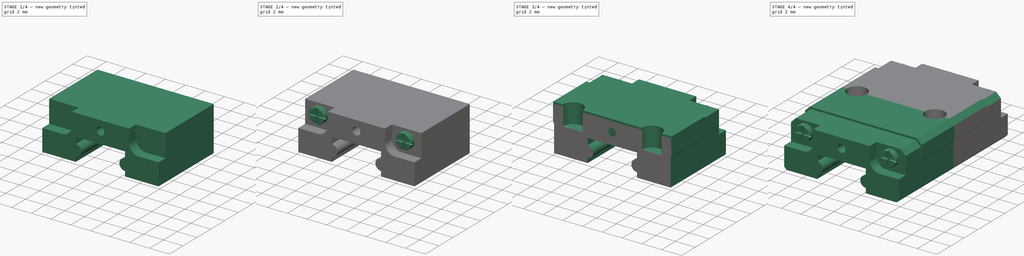
[diagram: build sequence overview — one tinted view per stage of 4, left to right]
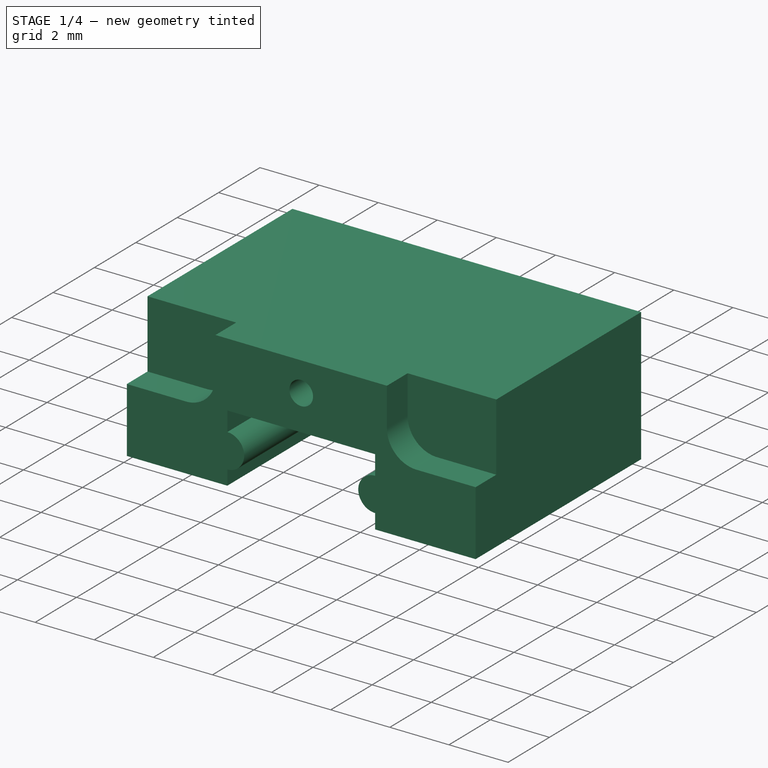
[diagram: stage 1 of 4 — iso view after this stage's code; geometry added in this stage tinted green]
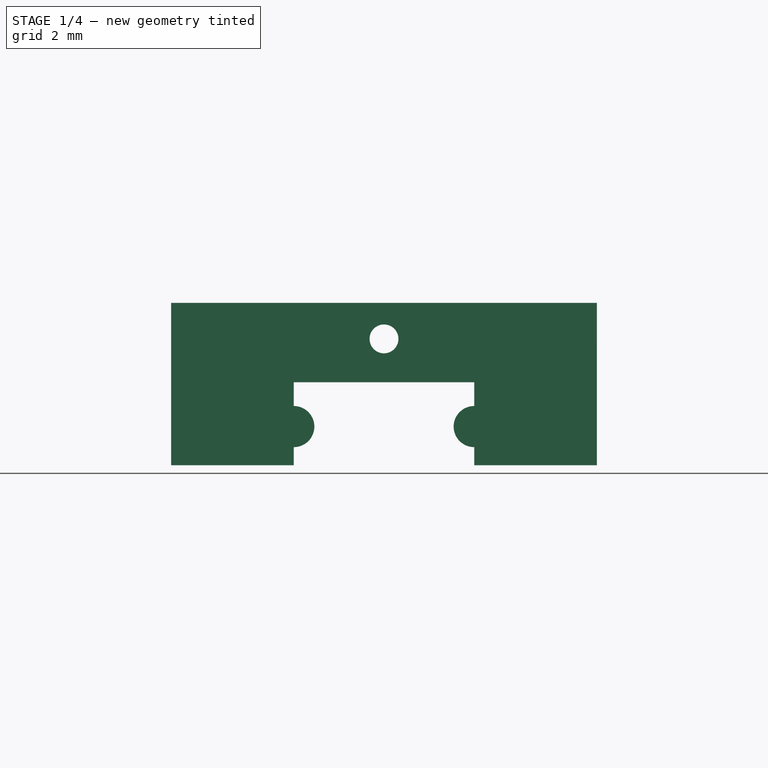
[diagram: stage 1 of 4 — front view after this stage's code; geometry added in this stage tinted green]
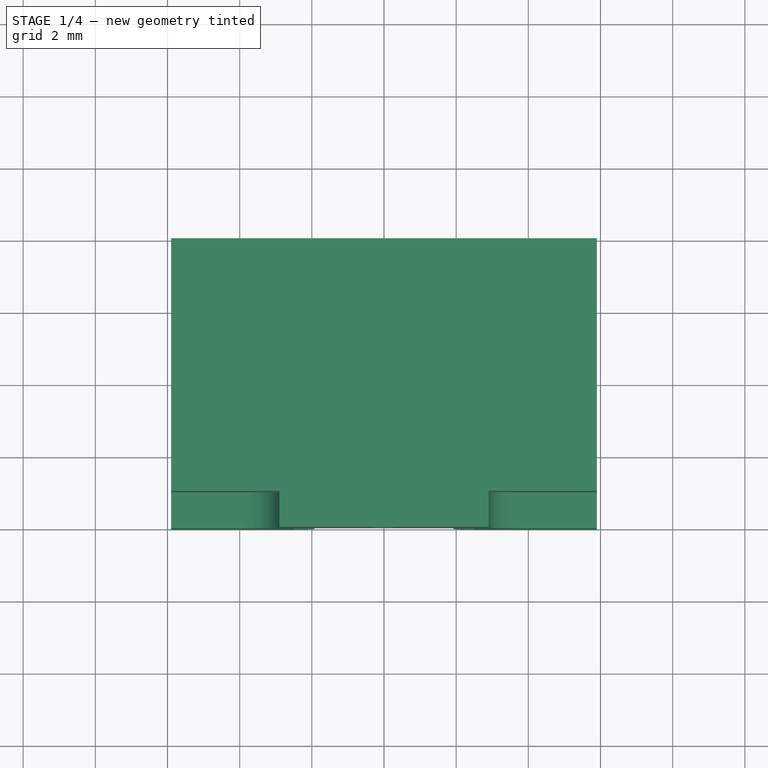
[diagram: stage 1 of 4 — top view after this stage's code; geometry added in this stage tinted green]
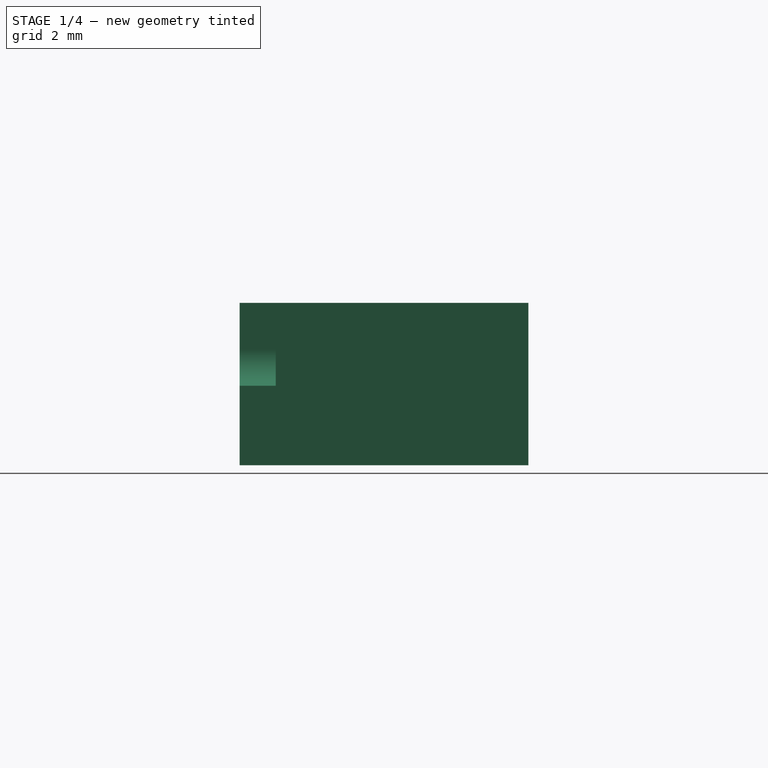
[diagram: stage 1 of 4 — right view after this stage's code; geometry added in this stage tinted green]
FCSTD DOCUMENT  (FreeCAD 0.20R)
Label: LinearSlide-MGN5-Block
License: Creative Commons Attribution-ShareAlike
LicenseURL: http://creativecommons.org/licenses/by-sa/4.0/
objects: Sketcher::SketchObject×7, PartDesign::Pocket×4, PartDesign::Pad×3, Part::Chamfer×2, PartDesign::Fillet×1, PartDesign::Body×1, Part::Mirroring×1, Part::MultiFuse×1
note: 28 computed .brp shape members not serialized (recipe doc carries the construction recipe); baked Part::Feature solids carry a one-line shape summary decoded from their .brp

FEATURE [Sketcher::SketchObject] Sketch  label="Block main section"
  FullyConstrained = true
  MapMode = 5
  Placement = pos=(0,0,0) rot=(1,0,0;1.5708rad)
  Support = -> [XZ_Plane]
  sketch-geometry (12):
    g0: LineSegment StartX=-5.9 StartY=0 StartZ=0 EndX=-2.5 EndY=0 EndZ=0
    g1: LineSegment StartX=-2.5 StartY=0 StartZ=0 EndX=-2.5 EndY=0.5 EndZ=0
    g2: LineSegment StartX=-2.5 StartY=2.3 StartZ=0 EndX=2.5 EndY=2.3 EndZ=0
    g3: LineSegment StartX=2.5 StartY=2.3 StartZ=0 EndX=2.5 EndY=1.64 EndZ=0
    g4: LineSegment StartX=2.5 StartY=0 StartZ=0 EndX=5.9 EndY=0 EndZ=0
    g5: LineSegment StartX=5.9 StartY=0 StartZ=0 EndX=5.9 EndY=4.5 EndZ=0
    g6: LineSegment StartX=5.9 StartY=4.5 StartZ=0 EndX=-5.9 EndY=4.5 EndZ=0
    g7: LineSegment StartX=-5.9 StartY=4.5 StartZ=0 EndX=-5.9 EndY=0 EndZ=0
    g8: ArcOfCircle CenterX=-2.5 CenterY=1.07 CenterZ=0 NormalX=0 NormalY=0 NormalZ=1 AngleXU=0 Radius=0.57 StartAngle=4.71239 EndAngle=7.85398
    g9: ArcOfCircle CenterX=2.5 CenterY=1.07 CenterZ=0 NormalX=0 NormalY=0 NormalZ=1 AngleXU=0 Radius=0.57 StartAngle=1.5708 EndAngle=4.71239
    g10: LineSegment StartX=-2.5 StartY=1.64 StartZ=0 EndX=-2.5 EndY=2.3 EndZ=0
    g11: LineSegment StartX=2.5 StartY=0.5 StartZ=0 EndX=2.5 EndY=0 EndZ=0
  constraints (33):
    c: Horizontal(g0)
    c: Coincident(g0,g1)
    c: Vertical(g1)
    c: Coincident(g11,g4)
    c: Horizontal(g4)
    c: Coincident(g4,g5)
    c: Vertical(g5)
    c: Coincident(g5,g6)
    c: Vertical(g7)
    c: Coincident(g0,g7)
    c: Symmetric(g6,g5,g-2)
    c: Symmetric(g2,g2,g-2)
    c: Symmetric(g10,g3,g-2)
    c: Symmetric(g0,g11,g-2)
    c: Coincident(g7,g6)
    c: DistanceY(g7,g7) = 4.5
    c: DistanceX(g6,g5) = 11.8
    c: PointOnObject(g0,g-1)
    c: DistanceX(g0,g0) = 3.4
    c: Coincident(g2,g3)
    c: DistanceY(g1,g10) = 2.3
    c: Radius(g9) = 0.57
    c: Symmetric(g9,g8,g-2)
    c: PointOnObject(g8,g1)
    c: DistanceY(g9,g2) = 1.23
    c: Coincident(g1,g8)
    c: Coincident(g10,g8)
    c: Coincident(g9,g11)
    c: Coincident(g9,g3)
    c: Symmetric(g9,g1,g-2)
    c: Symmetric(g8,g3,g-2)
    c: DistanceX(g2,g2) = 5
    c: Vertical(g3)
FEATURE [PartDesign::Pad] Pad
  Direction = (0,-1,-2e-16)
  Length = 8
  Length2 = 10
  Placement = pos=(0,0,0) rot=(1,0,0;1.5708rad)
  Profile = -> Sketch
  ReferenceAxis = -> Sketch [N_Axis]
  Type = 0
FEATURE [Sketcher::SketchObject] Sketch001  label="Gap drill"
  ExternalGeometry = -> [Pad]
  FullyConstrained = true
  MapMode = 5
  Placement = pos=(0,-8,-1.8e-15) rot=(1,0,0;1.5708rad)
  Support = -> [Pad]
  sketch-geometry (1):
    g0: Circle CenterX=0 CenterY=3.5 CenterZ=0 NormalX=0 NormalY=0 NormalZ=1 AngleXU=0 Radius=0.4
  constraints (3):
    c: PointOnObject(g0,g-2)
    c: Diameter(g0) = 0.8
    c: DistanceY(g0,g-3) = 1
FEATURE [PartDesign::Pocket] Pocket
  BaseFeature = -> Pad
  Direction = (0,1,2e-16)
  Length = 5
  Length2 = 5
  Placement = pos=(0,0,0) rot=(1,0,0;1.5708rad)
  Profile = -> Sketch001
  ReferenceAxis = -> Sketch001 [N_Axis]
  Type = 1
FEATURE [Sketcher::SketchObject] Sketch002
  ExternalGeometry = -> [Pocket]
  FullyConstrained = true
  MapMode = 5
  Placement = pos=(0,-8,-1.8e-15) rot=(1,0,0;1.5708rad)
  Support = -> [Pocket]
  sketch-geometry (10):
    g0: LineSegment StartX=-2.9 StartY=4.5 StartZ=0 EndX=-5.9 EndY=4.5 EndZ=0
    g1: LineSegment StartX=-5.9 StartY=4.5 StartZ=0 EndX=-5.9 EndY=2.2 EndZ=0
    g2: LineSegment StartX=-5.9 StartY=2.2 StartZ=0 EndX=-3.9 EndY=2.2 EndZ=0
    g3: LineSegment StartX=-2.9 StartY=3.2 StartZ=0 EndX=-2.9 EndY=4.5 EndZ=0
    g4: LineSegment StartX=5.9 StartY=2.2 StartZ=0 EndX=3.9 EndY=2.2 EndZ=0
    g5: LineSegment StartX=2.9 StartY=3.2 StartZ=0 EndX=2.9 EndY=4.5 EndZ=0
    g6: LineSegment StartX=2.9 StartY=4.5 StartZ=0 EndX=5.9 EndY=4.5 EndZ=0
    g7: LineSegment StartX=5.9 StartY=4.5 StartZ=0 EndX=5.9 EndY=2.2 EndZ=0
    g8: ArcOfCircle CenterX=-3.9 CenterY=3.2 CenterZ=0 NormalX=0 NormalY=0 NormalZ=1 AngleXU=0 Radius=1 StartAngle=4.71239 EndAngle=6.28319
    g9: ArcOfCircle CenterX=3.9 CenterY=3.2 CenterZ=0 NormalX=0 NormalY=0 NormalZ=1 AngleXU=0 Radius=1 StartAngle=3.14159 EndAngle=4.71239
  constraints (26):
    c: Coincident(g0,g1)
    c: Coincident(g1,g2)
    c: Coincident(g3,g0)
    c: Horizontal(g0)
    c: Horizontal(g2)
    c: Vertical(g1)
    c: Vertical(g3)
    c: Coincident(g5,g6)
    c: Coincident(g6,g7)
    c: Coincident(g7,g4)
    c: Horizontal(g4)
    c: Horizontal(g6)
    c: Vertical(g5)
    c: Vertical(g7)
    c: DistanceY(g1,g1) = 2.3
    c: Coincident(g0,g-3)
    c: Coincident(g6,g-3)
    c: DistanceX(g0,g0) = 3
    c: Tangent(g3,g8) = -1.5708
    c: Tangent(g2,g8) = -1.5708
    c: Tangent(g5,g9) = 1.5708
    c: Tangent(g4,g9) = 1.5708
    c: Equal(g1,g7)
    c: Equal(g0,g6)
    c: Equal(g8,g9)
    c: Radius(g8) = 1
FEATURE [PartDesign::Pocket] Pocket001
  BaseFeature = -> Pocket
  Direction = (0,1,2e-16)
  Length = 1
  Length2 = 5
  Placement = pos=(0,0,0) rot=(1,0,0;1.5708rad)
  Profile = -> Sketch002
  ReferenceAxis = -> Sketch002 [N_Axis]
  Type = 0
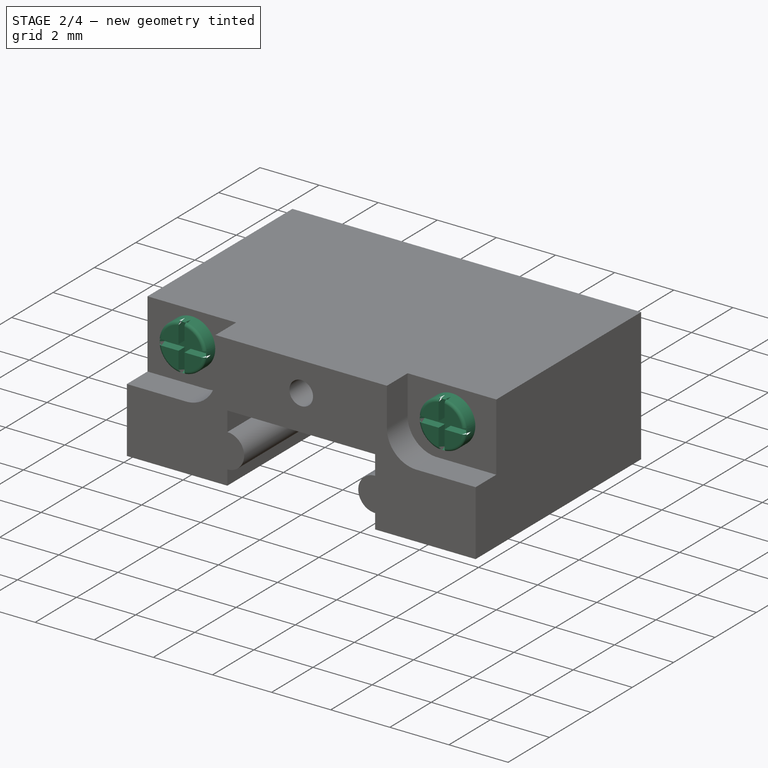
[diagram: stage 2 of 4 — iso view after this stage's code; geometry added in this stage tinted green]
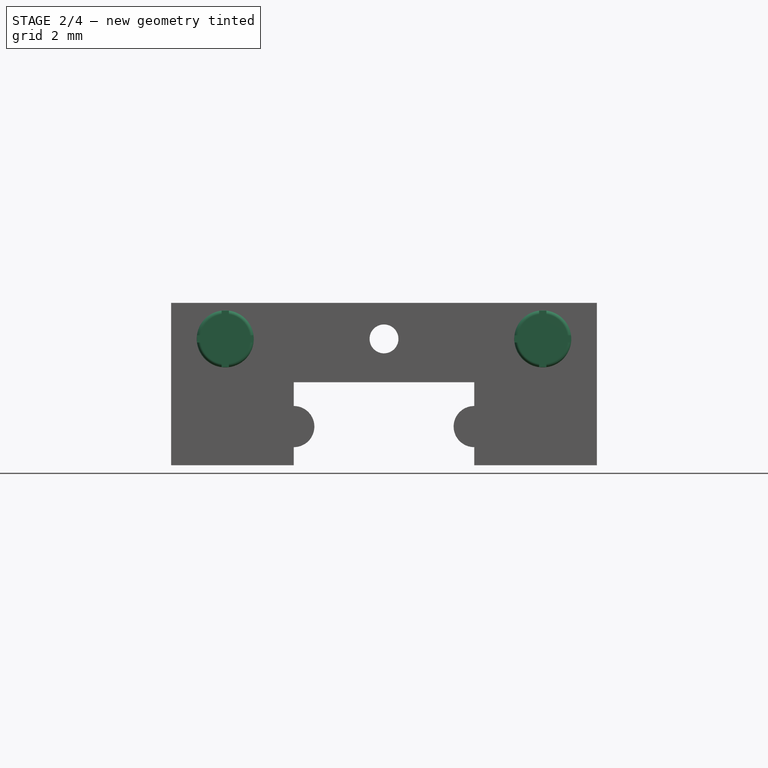
[diagram: stage 2 of 4 — front view after this stage's code; geometry added in this stage tinted green]
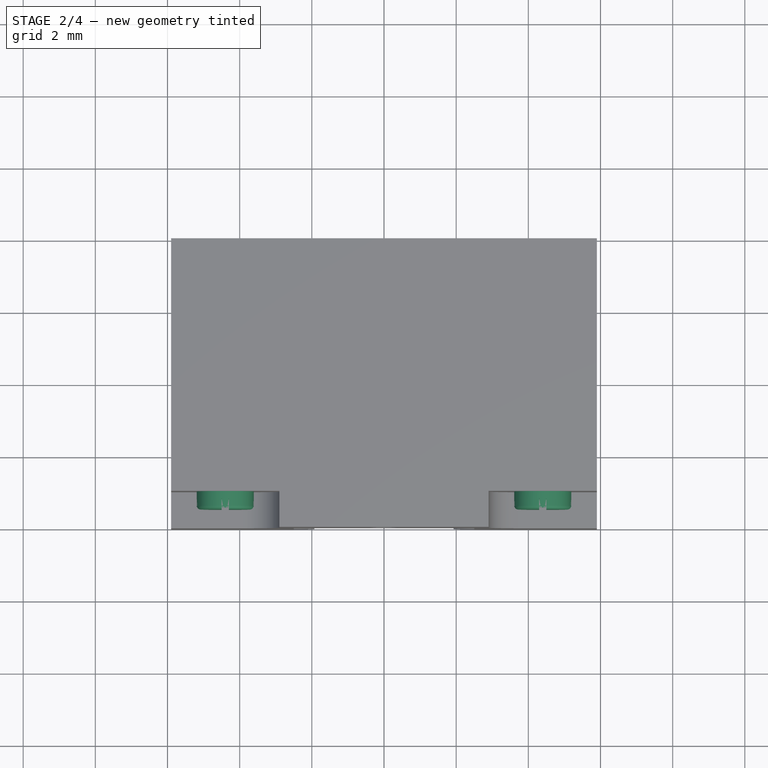
[diagram: stage 2 of 4 — top view after this stage's code; geometry added in this stage tinted green]
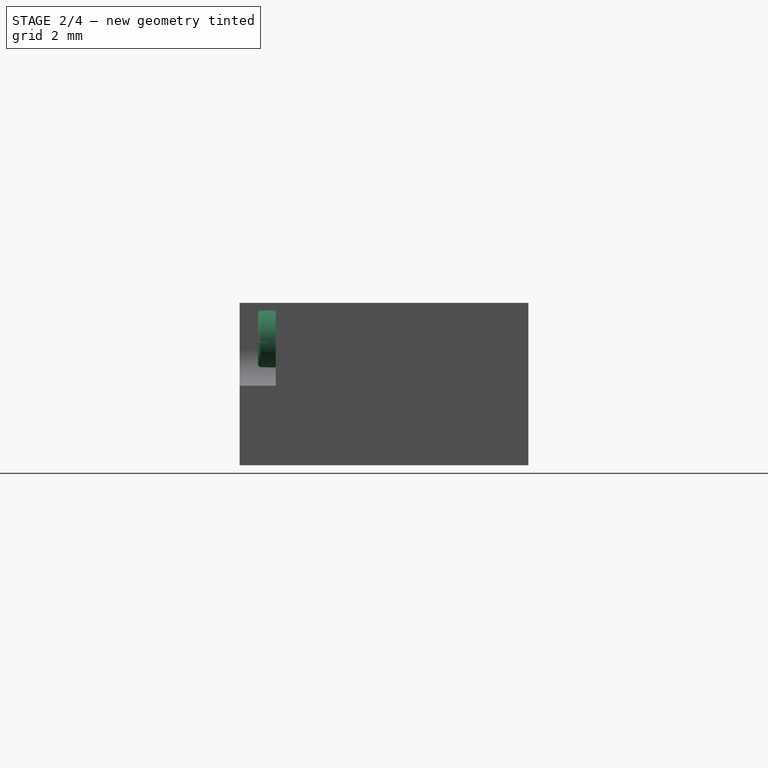
[diagram: stage 2 of 4 — right view after this stage's code; geometry added in this stage tinted green]
FEATURE [Sketcher::SketchObject] Sketch003
  ExternalGeometry = -> [Pocket001]
  FullyConstrained = true
  MapMode = 5
  Placement = pos=(0,-7,0) rot=(1,0,0;1.5708rad)
  Support = -> [Pocket001]
  sketch-geometry (2):
    g0: Circle CenterX=-4.4 CenterY=3.5 CenterZ=0 NormalX=0 NormalY=0 NormalZ=1 AngleXU=0 Radius=0.79
    g1: Circle CenterX=4.4 CenterY=3.5 CenterZ=0 NormalX=0 NormalY=0 NormalZ=1 AngleXU=0 Radius=0.79
  constraints (5):
    c: Symmetric(g0,g1,g-2)
    c: Equal(g0,g1)
    c: Diameter(g0) = 1.58
    c: DistanceX(g-3,g0) = 1.5
    c: DistanceY(g0,g-3) = 1
FEATURE [PartDesign::Pad] Pad001
  BaseFeature = -> Pocket001
  Direction = (0,-1,2e-16)
  Length = 0.5
  Length2 = 10
  Placement = pos=(0,0,0) rot=(1,0,0;1.5708rad)
  Profile = -> Sketch003
  ReferenceAxis = -> Sketch003 [N_Axis]
  Type = 0
FEATURE [PartDesign::Fillet] Fillet
  Base = -> Pad001 [Face25,Face27]
  BaseFeature = -> Pad001
  Placement = pos=(0,0,0) rot=(1,0,0;1.5708rad)
  Radius = 0.1
  SupportTransform = false
  UseAllEdges = false
FEATURE [Sketcher::SketchObject] Sketch004
  ExternalGeometry = -> [Fillet]
  FullyConstrained = true
  MapMode = 5
  Placement = pos=(0,-7.5,0) rot=(1,0,0;1.5708rad)
  Support = -> [Fillet]
  sketch-geometry (24):
    g0: LineSegment StartX=-4.5 StartY=4.28365 StartZ=0 EndX=-4.3 EndY=4.28365 EndZ=0
    g1: LineSegment StartX=-4.3 StartY=4.28365 StartZ=0 EndX=-4.3 EndY=3.6 EndZ=0
    g2: LineSegment StartX=-4.3 StartY=3.6 StartZ=0 EndX=-3.61635 EndY=3.6 EndZ=0
    g3: LineSegment StartX=-3.61635 StartY=3.6 StartZ=0 EndX=-3.61635 EndY=3.4 EndZ=0
    g4: LineSegment StartX=-3.61635 StartY=3.4 StartZ=0 EndX=-4.3 EndY=3.4 EndZ=0
    g5: LineSegment StartX=-4.3 StartY=3.4 StartZ=0 EndX=-4.3 EndY=2.71635 EndZ=0
    g6: LineSegment StartX=-4.3 StartY=2.71635 StartZ=0 EndX=-4.5 EndY=2.71635 EndZ=0
    g7: LineSegment StartX=-4.5 StartY=2.71635 StartZ=0 EndX=-4.5 EndY=3.4 EndZ=0
    g8: LineSegment StartX=-4.5 StartY=3.4 StartZ=0 EndX=-5.18365 EndY=3.4 EndZ=0
    g9: LineSegment StartX=-5.18365 StartY=3.4 StartZ=0 EndX=-5.18365 EndY=3.6 EndZ=0
    g10: LineSegment StartX=-5.18365 StartY=3.6 StartZ=0 EndX=-4.5 EndY=3.6 EndZ=0
    g11: LineSegment StartX=-4.5 StartY=3.6 StartZ=0 EndX=-4.5 EndY=4.28365 EndZ=0
    g12: LineSegment StartX=4.3 StartY=4.28365 StartZ=0 EndX=4.5 EndY=4.28365 EndZ=0
    g13: LineSegment StartX=4.5 StartY=4.28365 StartZ=0 EndX=4.5 EndY=3.6 EndZ=0
    g14: LineSegment StartX=4.5 StartY=3.6 StartZ=0 EndX=5.18365 EndY=3.6 EndZ=0
    g15: LineSegment StartX=5.18365 StartY=3.6 StartZ=0 EndX=5.18365 EndY=3.4 EndZ=0
    g16: LineSegment StartX=5.18365 StartY=3.4 StartZ=0 EndX=4.5 EndY=3.4 EndZ=0
    g17: LineSegment StartX=4.5 StartY=3.4 StartZ=0 EndX=4.5 EndY=2.71635 EndZ=0
    g18: LineSegment StartX=4.5 StartY=2.71635 StartZ=0 EndX=4.3 EndY=2.71635 EndZ=0
    g19: LineSegment StartX=4.3 StartY=2.71635 StartZ=0 EndX=4.3 EndY=3.4 EndZ=0
    g20: LineSegment StartX=4.3 StartY=3.4 StartZ=0 EndX=3.61635 EndY=3.4 EndZ=0
    g21: LineSegment StartX=3.61635 StartY=3.4 StartZ=0 EndX=3.61635 EndY=3.6 EndZ=0
    g22: LineSegment StartX=3.61635 StartY=3.6 StartZ=0 EndX=4.3 EndY=3.6 EndZ=0
    g23: LineSegment StartX=4.3 StartY=3.6 StartZ=0 EndX=4.3 EndY=4.28365 EndZ=0
  constraints (72):
    c: Horizontal(g0)
    c: Coincident(g0,g1)
    c: Vertical(g1)
    c: Coincident(g1,g2)
    c: Horizontal(g2)
    c: Coincident(g2,g3)
    c: Vertical(g3)
    c: Coincident(g3,g4)
    c: Horizontal(g4)
    c: Coincident(g4,g5)
    c: Vertical(g5)
    c: Coincident(g5,g6)
    c: Horizontal(g6)
    c: Coincident(g6,g7)
    c: Vertical(g7)
    c: Coincident(g7,g8)
    c: Horizontal(g8)
    c: Coincident(g8,g9)
    c: Vertical(g9)
    c: Coincident(g9,g10)
    c: Horizontal(g10)
    c: Coincident(g10,g11)
    c: Coincident(g11,g0)
    c: Vertical(g11)
    c: Equal(g10,g11)
    c: Equal(g11,g1)
    c: Equal(g1,g2)
    c: Equal(g2,g4)
    c: Equal(g4,g5)
    c: Equal(g5,g7)
    c: Equal(g7,g8)
    c: Equal(g6,g3)
    c: PointOnObject(g0,g-3)
    c: PointOnObject(g5,g-3)
    c: DistanceX(g6,g6) = 0.2
    c: PointOnObject(g0,g-3)
    c: Horizontal(g12)
    c: Coincident(g12,g13)
    c: Vertical(g13)
    c: Coincident(g13,g14)
    c: Horizontal(g14)
    c: Coincident(g14,g15)
    c: Vertical(g15)
    c: Coincident(g15,g16)
    c: Horizontal(g16)
    c: Coincident(g16,g17)
    c: Vertical(g17)
    c: Coincident(g17,g18)
    c: Horizontal(g18)
    c: Coincident(g18,g19)
    c: Vertical(g19)
    c: Coincident(g19,g20)
    c: Horizontal(g20)
    c: Coincident(g20,g21)
    c: Vertical(g21)
    c: Coincident(g21,g22)
    c: Horizontal(g22)
    c: Coincident(g22,g23)
    c: Coincident(g23,g12)
    c: Vertical(g23)
    c: Equal(g18,g15)
    c: Equal(g15,g12)
    c: Equal(g12,g21)
    c: PointOnObject(g17,g-4)
    c: PointOnObject(g15,g-4)
    c: PointOnObject(g18,g-4)
    c: PointOnObject(g20,g-4)
    c: PointOnObject(g21,g-4)
    c: PointOnObject(g12,g-4)
    c: DistanceY(g21,g21) = 0.2
    c: PointOnObject(g12,g-4)
    c: PointOnObject(g14,g-4)
FEATURE [PartDesign::Pocket] Pocket002
  BaseFeature = -> Fillet
  Direction = (0,1,-2e-16)
  Length = 0.3
  Length2 = 5
  Placement = pos=(0,0,0) rot=(1,0,0;1.5708rad)
  Profile = -> Sketch004
  ReferenceAxis = -> Sketch004 [N_Axis]
  Type = 0
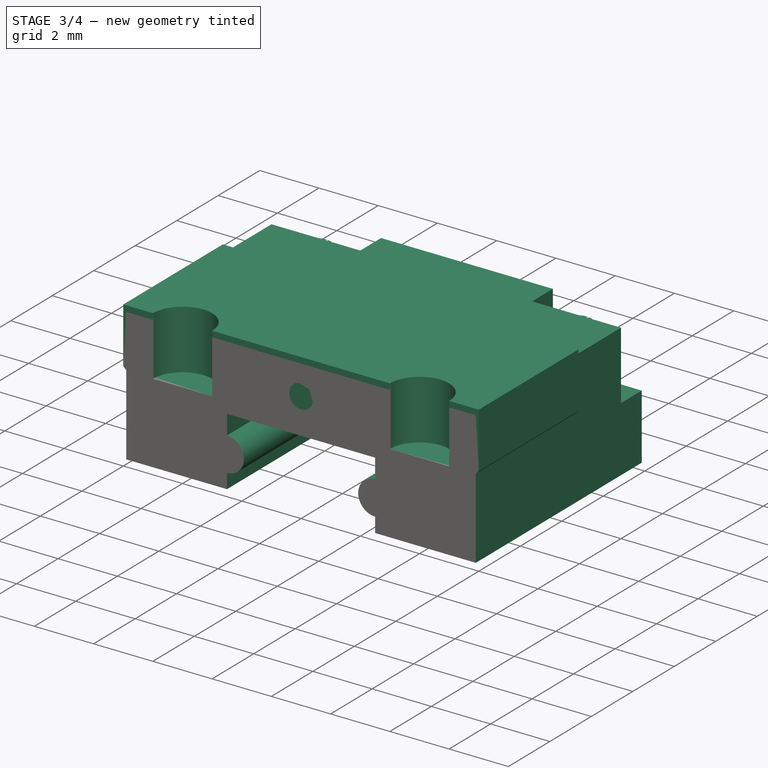
[diagram: stage 3 of 4 — iso view after this stage's code; geometry added in this stage tinted green]
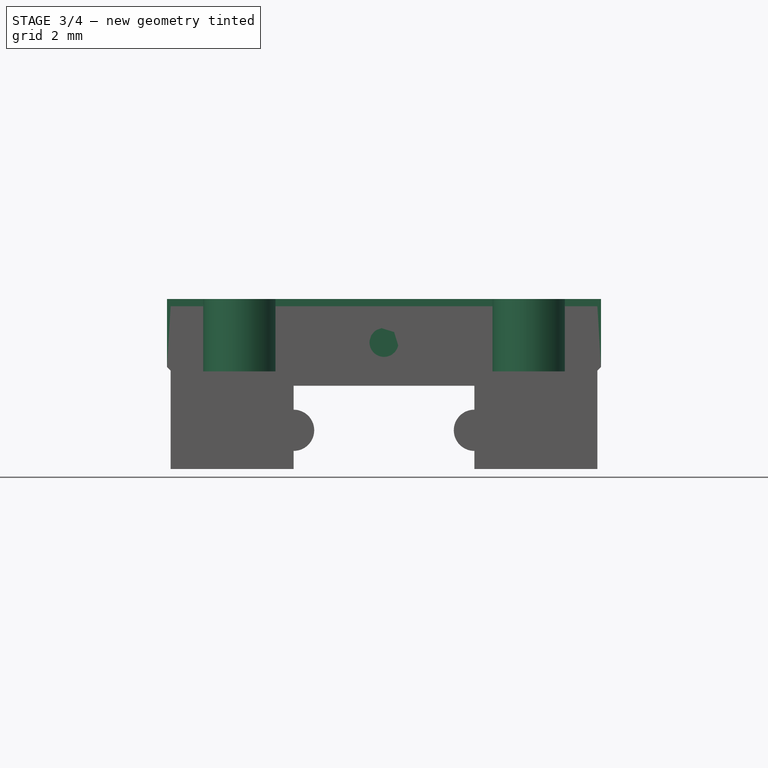
[diagram: stage 3 of 4 — front view after this stage's code; geometry added in this stage tinted green]
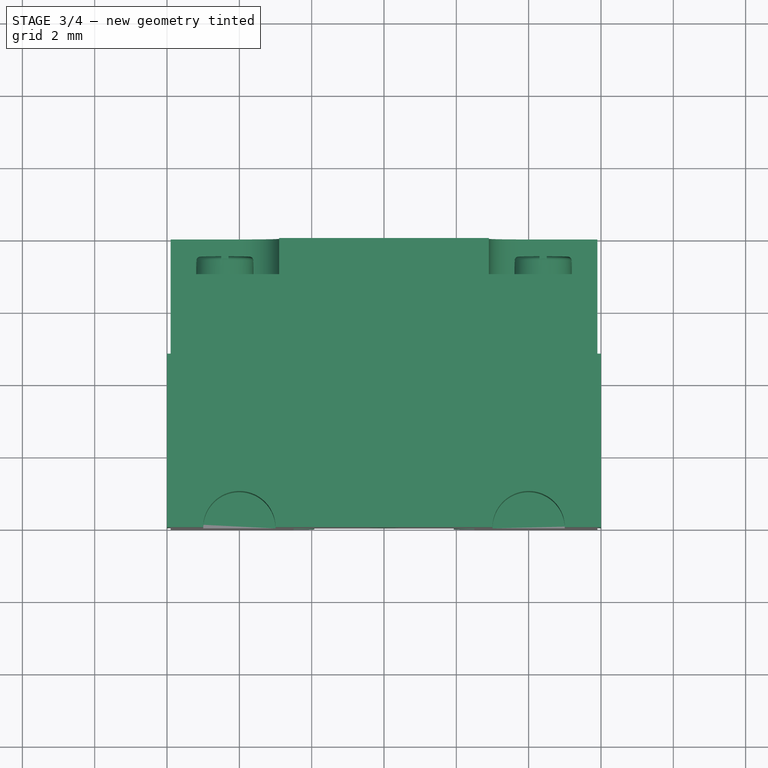
[diagram: stage 3 of 4 — top view after this stage's code; geometry added in this stage tinted green]
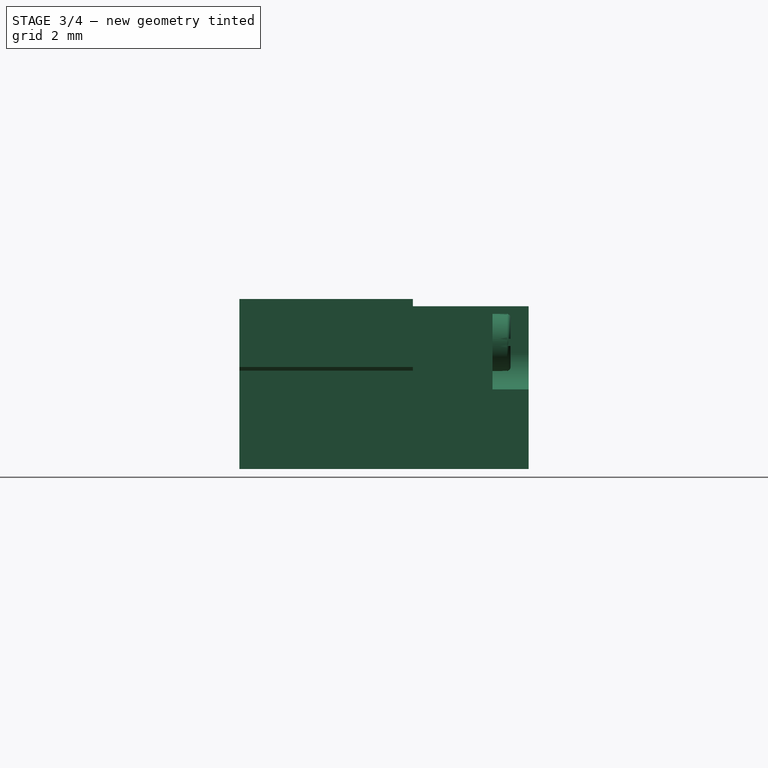
[diagram: stage 3 of 4 — right view after this stage's code; geometry added in this stage tinted green]
FEATURE [Sketcher::SketchObject] Sketch005
  ExternalGeometry = -> [Pocket002]
  FullyConstrained = true
  MapMode = 5
  Placement = pos=(0,0,0) rot=(-1,0,0;1.5708rad)
  Support = -> [Pocket002]
  sketch-geometry (6):
    g0: LineSegment StartX=-6 StartY=-2.82 StartZ=0 EndX=-6 EndY=-4.7 EndZ=0
    g1: LineSegment StartX=-6 StartY=-4.7 StartZ=0 EndX=6 EndY=-4.7 EndZ=0
    g2: LineSegment StartX=6 StartY=-4.7 StartZ=0 EndX=6 EndY=-2.82 EndZ=0
    g3: LineSegment StartX=6 StartY=-2.82 StartZ=0 EndX=5.9 EndY=-2.72 EndZ=0
    g4: LineSegment StartX=-5.9 StartY=-2.72 StartZ=0 EndX=-6 EndY=-2.82 EndZ=0
    g5: LineSegment StartX=-5.9 StartY=-2.72 StartZ=0 EndX=5.9 EndY=-2.72 EndZ=0
  constraints (16):
    c: Vertical(g0)
    c: Coincident(g0,g1)
    c: Coincident(g1,g2)
    c: Vertical(g2)
    c: Coincident(g2,g3)
    c: Coincident(g4,g0)
    c: PointOnObject(g4,g-4)
    c: Symmetric(g3,g4,g-2)
    c: Symmetric(g0,g1,g-2)
    c: DistanceY(g0,g0) = 1.88
    c: DistanceX(g1,g1) = 12
    c: DistanceY(g0,g-4) = 0.2
    c: Coincident(g5,g4)
    c: Coincident(g5,g3)
    c: Angle(g5,g3) = 2.35619
    c: Angle(g4,g5) = 2.35619
FEATURE [PartDesign::Pad] Pad002
  BaseFeature = -> Pocket002
  Direction = (0,1,2e-16)
  Length = 4.8
  Length2 = 10
  Placement = pos=(0,0,0) rot=(1,0,0;1.5708rad)
  Profile = -> Sketch005
  ReferenceAxis = -> Sketch005 [N_Axis]
  Reversed = true
  Type = 0
FEATURE [Sketcher::SketchObject] Sketch006
  FullyConstrained = true
  MapMode = 5
  Placement = pos=(0,-1e-15,4.7) rot=(0,0,1;3.14159rad)
  Support = -> [Pad002]
  sketch-geometry (2):
    g0: Circle CenterX=-4 CenterY=0 CenterZ=0 NormalX=0 NormalY=0 NormalZ=1 AngleXU=0 Radius=1
    g1: Circle CenterX=4 CenterY=0 CenterZ=0 NormalX=0 NormalY=0 NormalZ=1 AngleXU=0 Radius=1
  constraints (5):
    c: Symmetric(g0,g1,g-2)
    c: PointOnObject(g0,g-1)
    c: Equal(g1,g0)
    c: Radius(g0) = 1
    c: DistanceX(g0,g1) = 8
FEATURE [PartDesign::Pocket] Pocket003
  BaseFeature = -> Pad002
  Direction = (0,2e-16,-1)
  Length = 2
  Length2 = 5
  Placement = pos=(0,0,0) rot=(1,0,0;1.5708rad)
  Profile = -> Sketch006
  ReferenceAxis = -> Sketch006 [N_Axis]
  Type = 0
FEATURE [PartDesign::Body] Body
  Group = -> [Sketch,Pad,Sketch001,Pocket,Sketch002,Pocket001,Sketch003,Pad001,Fillet,Sketch004,Pocket002,Sketch005,Pad002,Sketch006,Pocket003]
  Origin = -> Origin
  Tip = -> Pocket003
FEATURE [Part::Mirroring] Part__Mirroring  label="Pocket003 (Mirror #1)"
  Base = (0,0,0)
  Normal = (0,1,0)
  Source = -> Pocket003
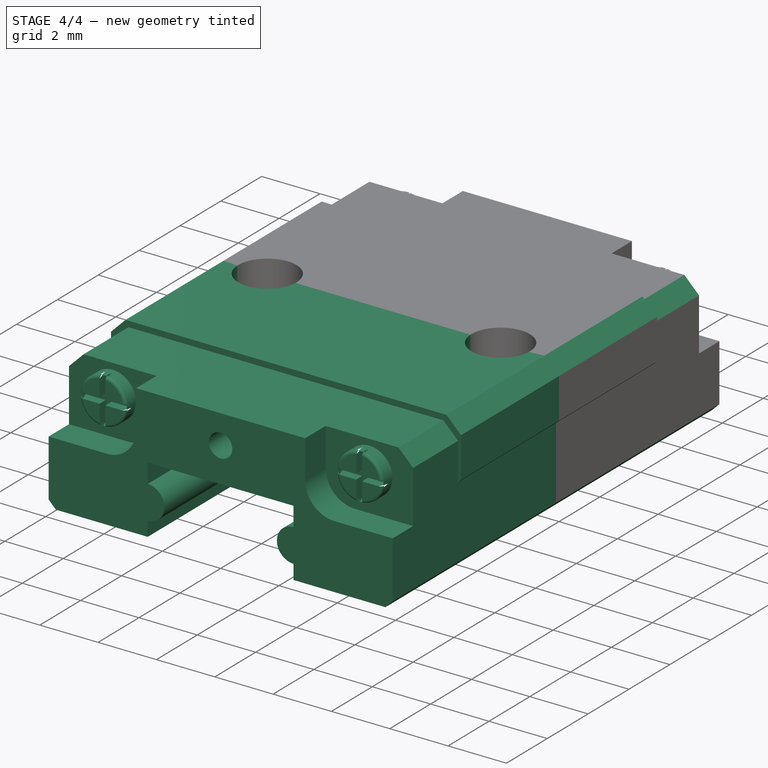
[diagram: stage 4 of 4 — iso view after this stage's code; geometry added in this stage tinted green]
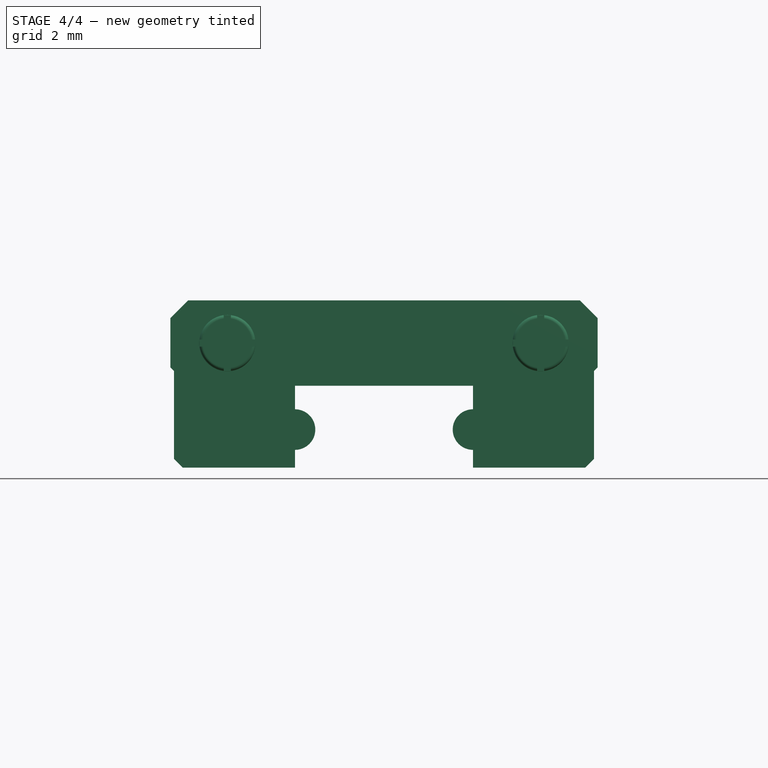
[diagram: stage 4 of 4 — front view after this stage's code; geometry added in this stage tinted green]
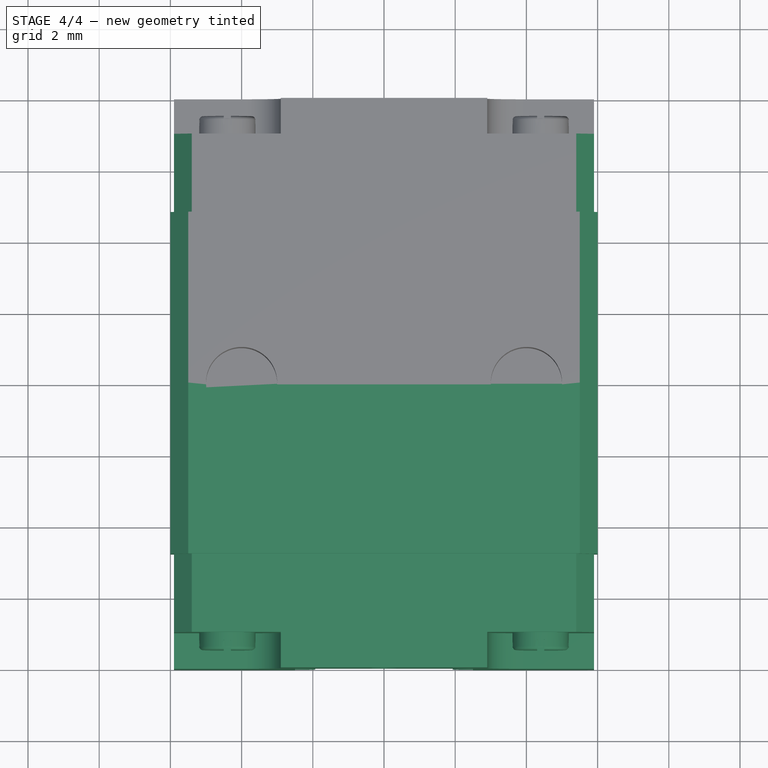
[diagram: stage 4 of 4 — top view after this stage's code; geometry added in this stage tinted green]
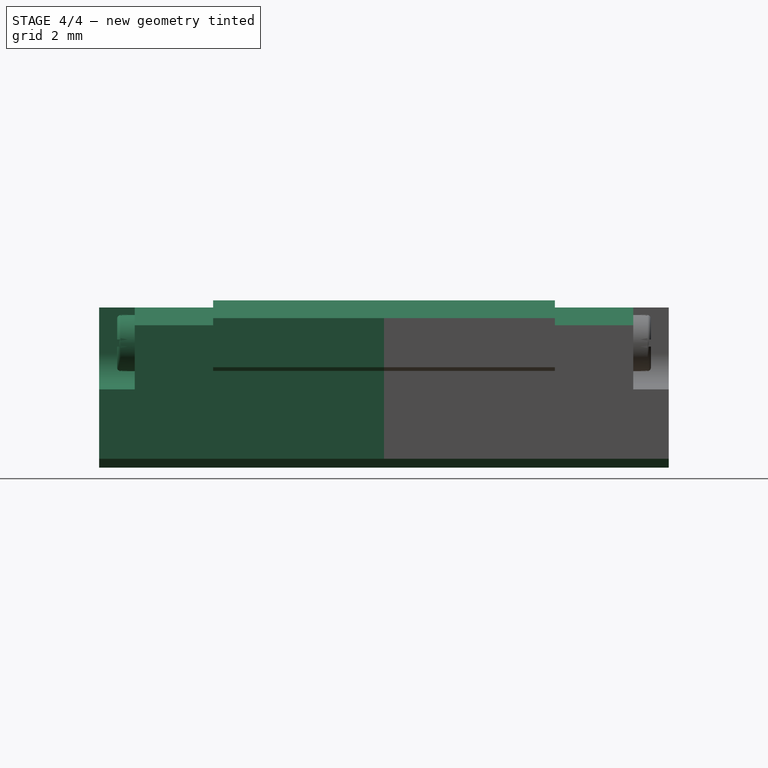
[diagram: stage 4 of 4 — right view after this stage's code; geometry added in this stage tinted green]
FEATURE [Part::MultiFuse] Fusion
  Shapes = -> [Pocket003,Part__Mirroring]
FEATURE [Part::Chamfer] Chamfer
  Base = -> Fusion
  Edges = 8 edges r=0.5: [Edge68,Edge73,Edge119,Edge128,Edge135,Edge175,Edge215,Edge218]
FEATURE [Part::Chamfer] Chamfer001  label="MGN5C"
  Base = -> Chamfer
  Edges = 4 edges r=0.25: [Edge21,Edge84,Edge136,Edge227]
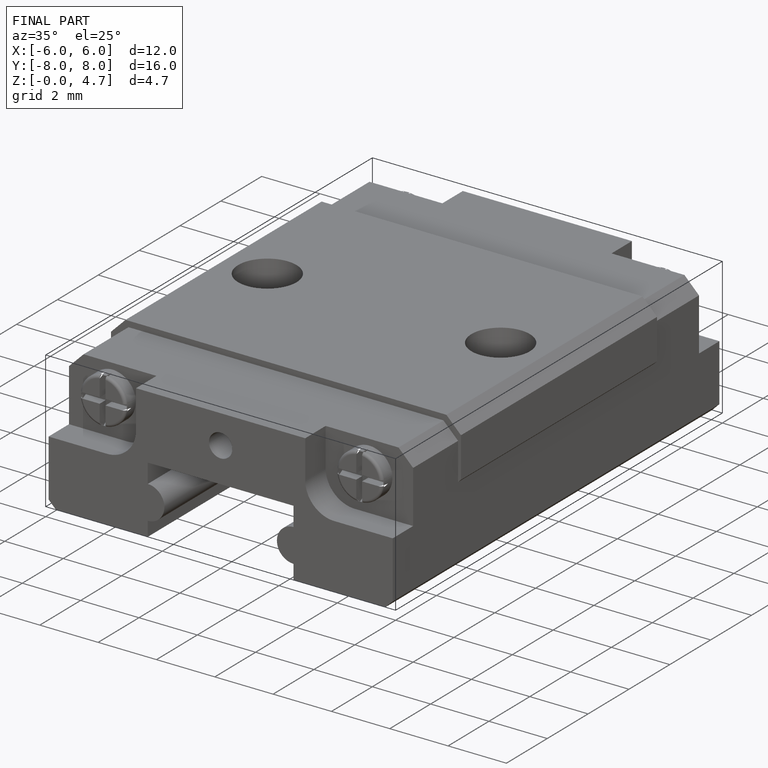
[diagram: finished part — iso view with bounding-box wireframe]
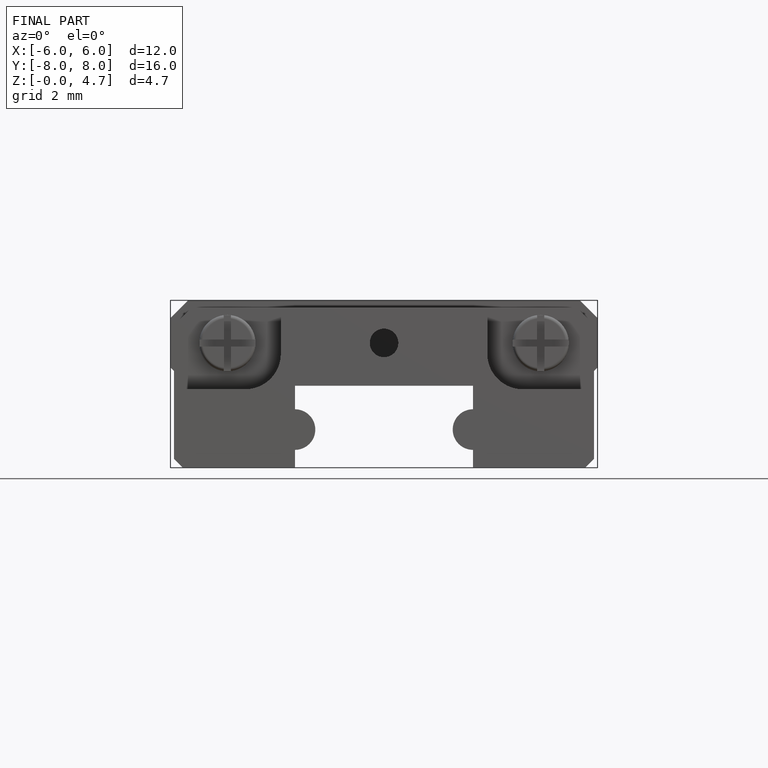
[diagram: finished part — front view with bounding-box wireframe]
